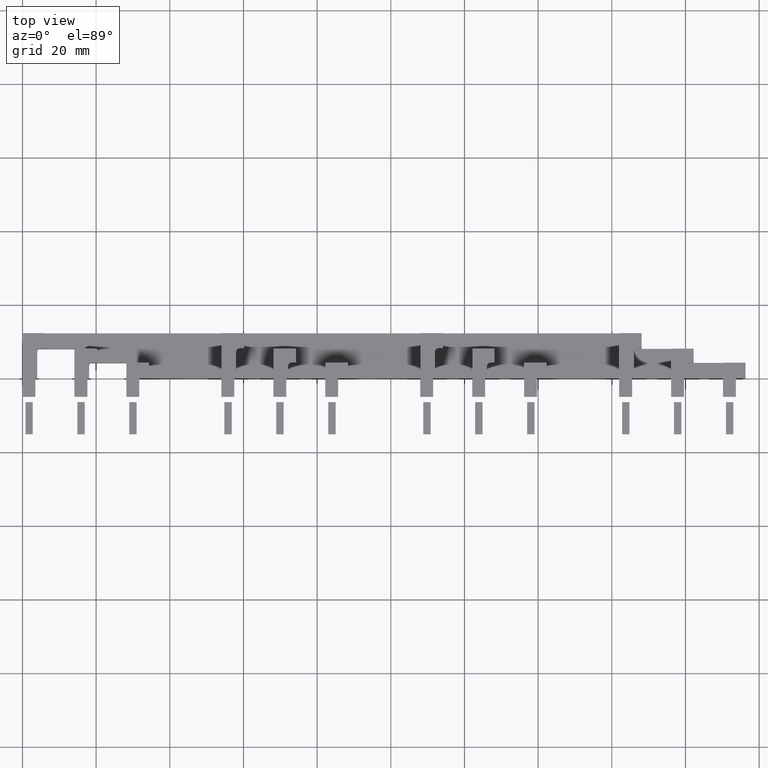
[diagram: clean part render]
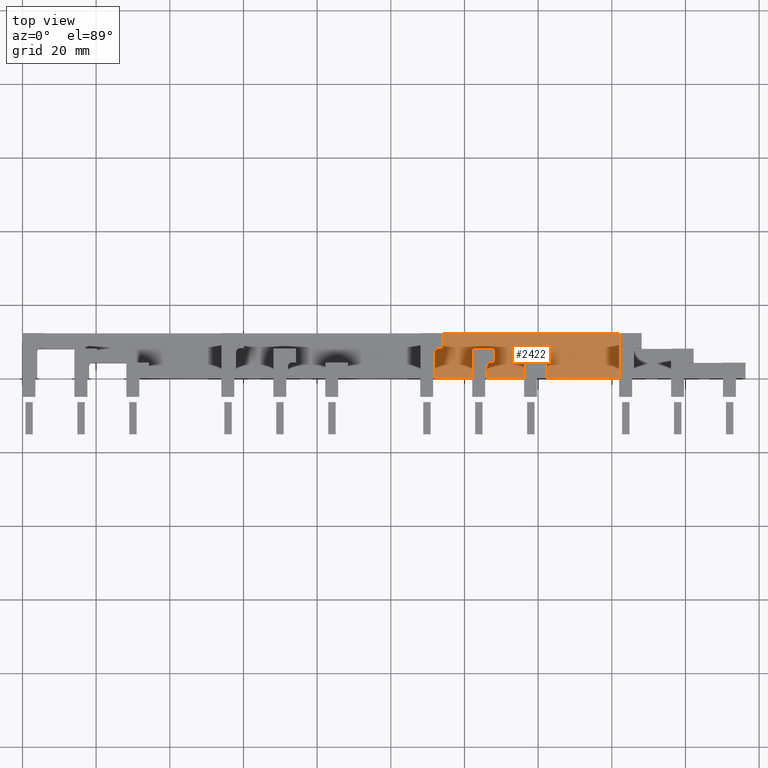
[diagram: same view with one face highlighted and labeled with its STEP entity id]
A machine part, top view. The second image highlights one B-rep face of the part: STEP entity #2422.
In plain terms, the highlighted planar face has unit normal (0, 0, 1).
Its self-contained STEP definition (entity closure, byte-faithful):
#324=CARTESIAN_POINT('',(126.09999999999971,3.199999999992799,95.999999999999957));
#325=VERTEX_POINT('',#324);
#332=CARTESIAN_POINT('',(127.09999999999971,4.199999999992799,95.999999999999957));
#333=VERTEX_POINT('',#332);
#334=CARTESIAN_POINT('',(127.09999999999965,3.199999999992855,95.999999999999957));
#335=DIRECTION('',(6.536127E-017,-6.536127E-017,1.0));
#336=DIRECTION('',(-0.707106781186548,0.707106781186547,9.243480E-017));
#337=AXIS2_PLACEMENT_3D('',#334,#335,#336);
#338=CIRCLE('',#337,0.999999999999943);
#339=EDGE_CURVE('',#333,#325,#338,.T.);
#363=CARTESIAN_POINT('',(126.09999999999971,-2.842171E-014,95.999999999999957));
#364=VERTEX_POINT('',#363);
#371=CARTESIAN_POINT('',(126.09999999999971,3.199999999992799,95.999999999999957));
#372=DIRECTION('',(0.0,-1.0,0.0));
#373=VECTOR('',#372,3.199999999992827);
#374=LINE('',#371,#373);
#375=EDGE_CURVE('',#325,#364,#374,.T.);
#465=CARTESIAN_POINT('',(122.09999999999971,7.999999999992299,95.999999999999957));
#466=VERTEX_POINT('',#465);
#473=CARTESIAN_POINT('',(122.09999999999971,2.842171E-014,95.999999999999957));
#474=VERTEX_POINT('',#473);
#475=CARTESIAN_POINT('',(122.09999999999971,2.797762E-014,95.999999999999957));
#476=DIRECTION('',(0.0,1.0,0.0));
#477=VECTOR('',#476,7.999999999992271);
#478=LINE('',#475,#477);
#479=EDGE_CURVE('',#474,#466,#478,.T.);
#504=CARTESIAN_POINT('',(128.19999999999968,7.999999999992555,95.999999999999957));
#505=VERTEX_POINT('',#504);
#512=CARTESIAN_POINT('',(122.09999999999971,7.999999999992281,95.999999999999957));
#513=DIRECTION('',(1.0,0.0,0.0));
#514=VECTOR('',#513,6.099999999999966);
#515=LINE('',#512,#514);
#516=EDGE_CURVE('',#466,#505,#515,.T.);
#535=CARTESIAN_POINT('',(128.19999999999922,4.199999999992799,95.999999999999957));
#536=VERTEX_POINT('',#535);
#543=CARTESIAN_POINT('',(128.19999999999968,7.99999999999257,95.999999999999957));
#544=DIRECTION('',(-1.196704E-013,-1.0,0.0));
#545=VECTOR('',#544,3.799999999999757);
#546=LINE('',#543,#545);
#547=EDGE_CURVE('',#505,#536,#546,.T.);
#565=CARTESIAN_POINT('',(128.19999999999922,4.199999999992788,95.999999999999957));
#566=DIRECTION('',(-1.0,0.0,0.0));
#567=VECTOR('',#566,1.099999999999511);
#568=LINE('',#565,#567);
#569=EDGE_CURVE('',#536,#333,#568,.T.);
#739=CARTESIAN_POINT('',(114.0999999999997,8.09999999999174,95.999999999999957));
#740=VERTEX_POINT('',#739);
#747=CARTESIAN_POINT('',(114.09999999999968,12.200000000000061,95.999999999999957));
#748=VERTEX_POINT('',#747);
#749=CARTESIAN_POINT('',(114.09999999999968,12.200000000000033,95.999999999999957));
#750=DIRECTION('',(0.0,-1.0,0.0));
#751=VECTOR('',#750,4.100000000008309);
#752=LINE('',#749,#751);
#753=EDGE_CURVE('',#748,#740,#752,.T.);
#777=CARTESIAN_POINT('',(112.9999999999999,8.09999999999174,95.999999999999957));
#778=VERTEX_POINT('',#777);
#785=CARTESIAN_POINT('',(114.09999999999971,8.099999999991749,95.999999999999957));
#786=DIRECTION('',(-1.0,0.0,0.0));
#787=VECTOR('',#786,1.099999999999795);
#788=LINE('',#785,#787);
#789=EDGE_CURVE('',#740,#778,#788,.T.);
#809=CARTESIAN_POINT('',(111.9999999999999,7.099999999991767,95.999999999999957));
#810=VERTEX_POINT('',#809);
#817=CARTESIAN_POINT('',(112.9999999999999,7.09999999999174,95.999999999999957));
#818=DIRECTION('',(6.536127E-017,-6.536127E-017,1.0));
#819=DIRECTION('',(-0.707106781186538,0.707106781186558,9.243480E-017));
#820=AXIS2_PLACEMENT_3D('',#817,#818,#819);
#821=CIRCLE('',#820,1.0);
#822=EDGE_CURVE('',#778,#810,#821,.T.);
#841=CARTESIAN_POINT('',(111.9999999999999,1.847411E-013,95.999999999999957));
#842=VERTEX_POINT('',#841);
#849=CARTESIAN_POINT('',(111.99999999999989,7.099999999991754,95.999999999999957));
#850=DIRECTION('',(0.0,-1.0,0.0));
#851=VECTOR('',#850,7.099999999991583);
#852=LINE('',#849,#851);
#853=EDGE_CURVE('',#810,#842,#852,.T.);
#1271=CARTESIAN_POINT('',(142.29999999999964,4.199999999992145,95.999999999999957));
#1272=VERTEX_POINT('',#1271);
#1279=CARTESIAN_POINT('',(136.19999999999962,4.199999999992145,95.999999999999957));
#1280=VERTEX_POINT('',#1279);
#1281=CARTESIAN_POINT('',(136.19999999999962,4.199999999992113,95.999999999999957));
#1282=DIRECTION('',(1.0,0.0,0.0));
#1283=VECTOR('',#1282,6.100000000000023);
#1284=LINE('',#1281,#1283);
#1285=EDGE_CURVE('',#1280,#1272,#1284,.T.);
#1309=CARTESIAN_POINT('',(142.29999999999964,-7.872814E-012,95.999999999999957));
#1310=VERTEX_POINT('',#1309);
#1317=CARTESIAN_POINT('',(142.29999999999964,4.199999999992132,95.999999999999957));
#1318=DIRECTION('',(0.0,-1.0,0.0));
#1319=VECTOR('',#1318,4.200000000000005);
#1320=LINE('',#1317,#1319);
#1321=EDGE_CURVE('',#1272,#1310,#1320,.T.);
#1410=CARTESIAN_POINT('',(136.19999999999962,2.842171E-014,95.999999999999957));
#1411=VERTEX_POINT('',#1410);
#1412=CARTESIAN_POINT('',(136.19999999999962,2.842171E-014,95.999999999999957));
#1413=DIRECTION('',(0.0,1.0,0.0));
#1414=VECTOR('',#1413,4.199999999992117);
#1415=LINE('',#1412,#1414);
#1416=EDGE_CURVE('',#1411,#1280,#1415,.T.);
#2220=CARTESIAN_POINT('',(162.00000000000003,12.200000000000076,95.999999999999957));
#2221=VERTEX_POINT('',#2220);
#2228=CARTESIAN_POINT('',(161.99999999999986,2.842171E-014,95.999999999999957));
#2229=VERTEX_POINT('',#2228);
#2230=CARTESIAN_POINT('',(161.99999999999989,2.842171E-014,95.999999999999957));
#2231=DIRECTION('',(0.0,1.0,0.0));
#2232=VECTOR('',#2231,12.200000000000047);
#2233=LINE('',#2230,#2232);
#2234=EDGE_CURVE('',#2229,#2221,#2233,.T.);
#2377=CARTESIAN_POINT('',(7.049999999999828,10.099999999996159,95.999999999999972));
#2378=DIRECTION('',(0.0,0.0,1.0));
#2379=DIRECTION('',(1.0,0.0,0.0));
#2380=AXIS2_PLACEMENT_3D('',#2377,#2378,#2379);
#2381=PLANE('',#2380);
#2382=ORIENTED_EDGE('',*,*,#375,.T.);
#2383=CARTESIAN_POINT('',(126.0999999999997,-1.067716E-014,95.999999999999957));
#2384=DIRECTION('',(1.0,0.0,0.0));
#2385=VECTOR('',#2384,10.099999999999895);
#2386=LINE('',#2383,#2385);
#2387=EDGE_CURVE('',#364,#1411,#2386,.T.);
#2388=ORIENTED_EDGE('',*,*,#2387,.T.);
#2389=ORIENTED_EDGE('',*,*,#1416,.T.);
#2390=ORIENTED_EDGE('',*,*,#1285,.T.);
#2391=ORIENTED_EDGE('',*,*,#1321,.T.);
#2392=CARTESIAN_POINT('',(142.29999999999964,-7.938128E-015,95.999999999999957));
#2393=DIRECTION('',(1.0,0.0,0.0));
#2394=VECTOR('',#2393,19.700000000000216);
#2395=LINE('',#2392,#2394);
#2396=EDGE_CURVE('',#1310,#2229,#2395,.T.);
#2397=ORIENTED_EDGE('',*,*,#2396,.T.);
#2398=ORIENTED_EDGE('',*,*,#2234,.T.);
#2399=CARTESIAN_POINT('',(162.00000000000003,12.200000000000076,95.999999999999943));
#2400=DIRECTION('',(-1.0,0.0,0.0));
#2401=VECTOR('',#2400,47.900000000000333);
#2402=LINE('',#2399,#2401);
#2403=EDGE_CURVE('',#2221,#748,#2402,.T.);
#2404=ORIENTED_EDGE('',*,*,#2403,.T.);
#2405=ORIENTED_EDGE('',*,*,#753,.T.);
#2406=ORIENTED_EDGE('',*,*,#789,.T.);
#2407=ORIENTED_EDGE('',*,*,#822,.T.);
#2408=ORIENTED_EDGE('',*,*,#853,.T.);
#2409=CARTESIAN_POINT('',(111.9999999999999,-1.306114E-014,95.999999999999957));
#2410=DIRECTION('',(1.0,0.0,0.0));
#2411=VECTOR('',#2410,10.099999999999795);
#2412=LINE('',#2409,#2411);
#2413=EDGE_CURVE('',#842,#474,#2412,.T.);
#2414=ORIENTED_EDGE('',*,*,#2413,.T.);
#2415=ORIENTED_EDGE('',*,*,#479,.T.);
#2416=ORIENTED_EDGE('',*,*,#516,.T.);
#2417=ORIENTED_EDGE('',*,*,#547,.T.);
#2418=ORIENTED_EDGE('',*,*,#569,.T.);
#2419=ORIENTED_EDGE('',*,*,#339,.T.);
#2420=EDGE_LOOP('',(#2382,#2388,#2389,#2390,#2391,#2397,#2398,#2404,#2405,#2406,#2407,#2408,#2414,#2415,#2416,#2417,#2418,#2419));
#2421=FACE_OUTER_BOUND('',#2420,.T.);
#2422=ADVANCED_FACE('',(#2421),#2381,.T.);